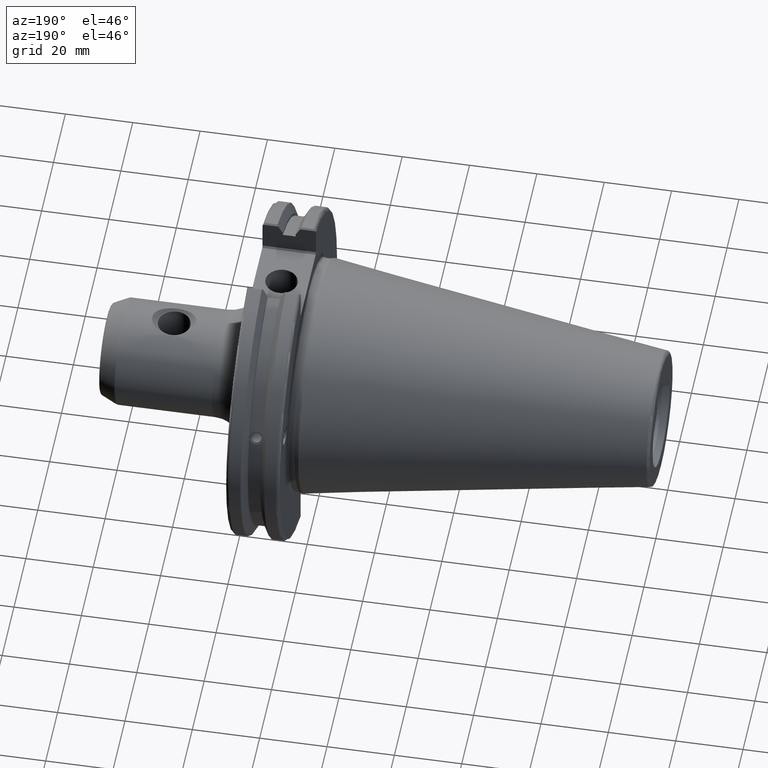
[diagram: clean part render]
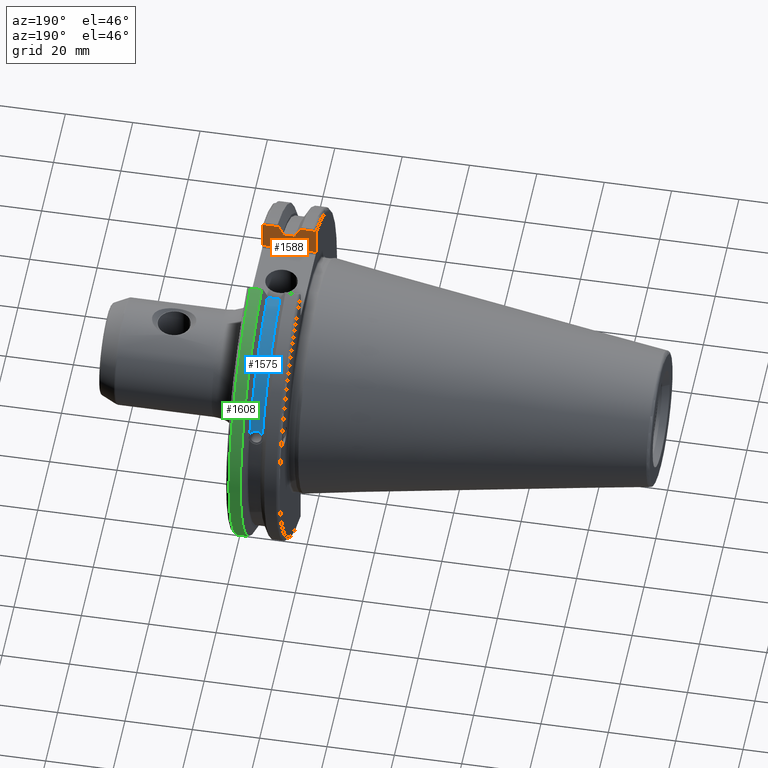
[diagram: same view with three faces highlighted in distinct colors, each labeled with its STEP entity id]
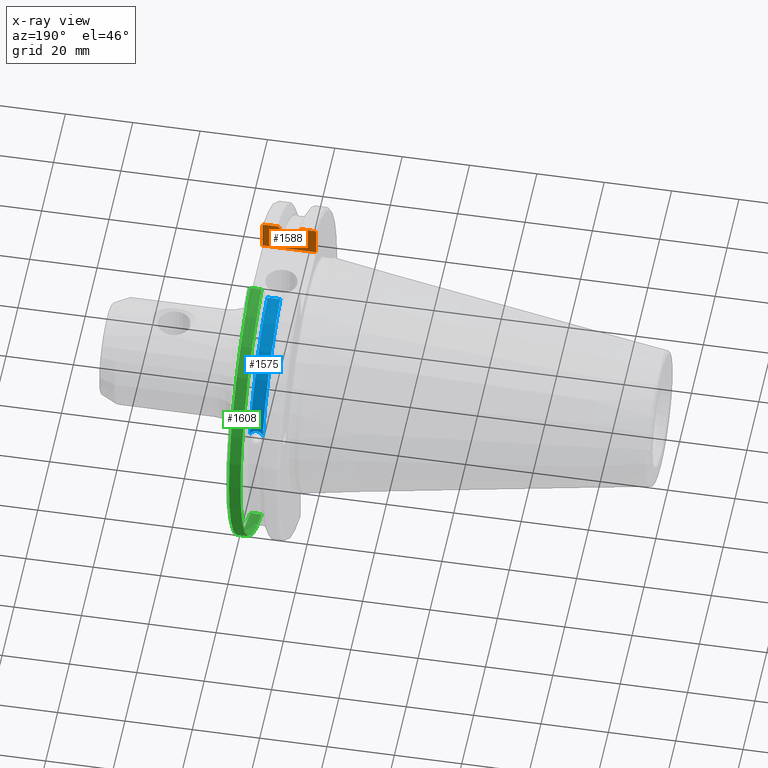
[diagram: x-ray of the same camera — body ghosted, the three highlighted faces saturated]
A machine part, auxiliary view with three faces highlighted in distinct colors.
The next image is the same camera in x-ray (body ghosted, the three faces saturated) — at least one of them is partly hidden behind the body in this view.
Their STEP definitions:

[orange] entity #1588 — the highlighted planar face has unit normal (-0, -1, 0).
#18=(
BOUNDED_CURVE()
B_SPLINE_CURVE(2,(#2825,#2826,#2827),.UNSPECIFIED.,.F.,.F.)
B_SPLINE_CURVE_WITH_KNOTS((3,3),(0.0558332664505639,0.331657177124505),
 .UNSPECIFIED.)
CURVE()
GEOMETRIC_REPRESENTATION_ITEM()
RATIONAL_B_SPLINE_CURVE((1.00012873636973,1.00038235575037,1.))
REPRESENTATION_ITEM('')
);
#24=(
BOUNDED_CURVE()
B_SPLINE_CURVE(2,(#3206,#3207,#3208),.UNSPECIFIED.,.F.,.F.)
B_SPLINE_CURVE_WITH_KNOTS((3,3),(0.,0.275823910674838),.UNSPECIFIED.)
CURVE()
GEOMETRIC_REPRESENTATION_ITEM()
RATIONAL_B_SPLINE_CURVE((1.,1.00038235573924,1.00012873636598))
REPRESENTATION_ITEM('')
);
#93=PLANE('',#1760);
#241=FACE_OUTER_BOUND('',#350,.T.);
#350=EDGE_LOOP('',(#1321,#1322,#1323,#1324,#1325,#1326,#1327,#1328,#1329,
#1330,#1331,#1332));
#429=B_SPLINE_CURVE_WITH_KNOTS('',3,(#3169,#3170,#3171,#3172,#3173,#3174),
 .UNSPECIFIED.,.F.,.F.,(4,2,4),(0.452859694247731,0.491383469061936,0.506034728678978),
 .UNSPECIFIED.);
#432=B_SPLINE_CURVE_WITH_KNOTS('',3,(#3197,#3198,#3199,#3200,#3201,#3202),
 .UNSPECIFIED.,.F.,.F.,(4,2,4),(0.0976892167532858,0.112000071948292,0.150881870548587),
 .UNSPECIFIED.);
#451=LINE('',#2512,#546);
#487=LINE('',#3079,#582);
#505=LINE('',#3195,#600);
#506=LINE('',#3204,#601);
#507=LINE('',#3210,#602);
#508=LINE('',#3212,#603);
#509=LINE('',#3213,#604);
#510=LINE('',#3214,#605);
#546=VECTOR('',#1907,10.);
#582=VECTOR('',#2071,10.);
#600=VECTOR('',#2109,10.);
#601=VECTOR('',#2110,10.);
#602=VECTOR('',#2111,10.);
#603=VECTOR('',#2112,10.);
#604=VECTOR('',#2113,10.);
#605=VECTOR('',#2114,10.);
#665=VERTEX_POINT('',#2509);
#666=VERTEX_POINT('',#2511);
#704=VERTEX_POINT('',#2820);
#705=VERTEX_POINT('',#2824);
#741=VERTEX_POINT('',#3075);
#743=VERTEX_POINT('',#3078);
#764=VERTEX_POINT('',#3168);
#767=VERTEX_POINT('',#3196);
#768=VERTEX_POINT('',#3203);
#769=VERTEX_POINT('',#3205);
#770=VERTEX_POINT('',#3209);
#771=VERTEX_POINT('',#3211);
#838=EDGE_CURVE('',#665,#666,#451,.T.);
#887=EDGE_CURVE('',#704,#705,#18,.T.);
#938=EDGE_CURVE('',#741,#743,#487,.T.);
#966=EDGE_CURVE('',#666,#764,#429,.T.);
#970=EDGE_CURVE('',#743,#665,#505,.T.);
#971=EDGE_CURVE('',#767,#741,#432,.T.);
#972=EDGE_CURVE('',#768,#767,#506,.T.);
#973=EDGE_CURVE('',#769,#768,#24,.T.);
#974=EDGE_CURVE('',#770,#769,#507,.T.);
#975=EDGE_CURVE('',#771,#770,#508,.T.);
#976=EDGE_CURVE('',#705,#771,#509,.T.);
#977=EDGE_CURVE('',#764,#704,#510,.T.);
#1321=ORIENTED_EDGE('',*,*,#966,.F.);
#1322=ORIENTED_EDGE('',*,*,#838,.F.);
#1323=ORIENTED_EDGE('',*,*,#970,.F.);
#1324=ORIENTED_EDGE('',*,*,#938,.F.);
#1325=ORIENTED_EDGE('',*,*,#971,.F.);
#1326=ORIENTED_EDGE('',*,*,#972,.F.);
#1327=ORIENTED_EDGE('',*,*,#973,.F.);
#1328=ORIENTED_EDGE('',*,*,#974,.F.);
#1329=ORIENTED_EDGE('',*,*,#975,.F.);
#1330=ORIENTED_EDGE('',*,*,#976,.F.);
#1331=ORIENTED_EDGE('',*,*,#887,.F.);
#1332=ORIENTED_EDGE('',*,*,#977,.F.);
#1588=ADVANCED_FACE('',(#241),#93,.F.);
#1760=AXIS2_PLACEMENT_3D('',#3194,#2107,#2108);
#1907=DIRECTION('',(0.,0.,1.));
#2071=DIRECTION('',(0.,0.,-1.));
#2107=DIRECTION('center_axis',(-1.31581988103722E-16,-1.,0.));
#2108=DIRECTION('ref_axis',(1.,-1.31581988103722E-16,0.));
#2109=DIRECTION('',(1.,-1.31581988103722E-16,0.));
#2110=DIRECTION('',(-1.,1.31581988103722E-16,0.));
#2111=DIRECTION('',(0.,0.,1.));
#2112=DIRECTION('',(-1.,0.,0.));
#2113=DIRECTION('',(0.,0.,-1.));
#2114=DIRECTION('',(-1.,1.31581988103722E-16,0.));
#2509=CARTESIAN_POINT('',(19.05,-12.95,38.219));
#2511=CARTESIAN_POINT('',(19.05,-12.95,46.4407434937254));
#2512=CARTESIAN_POINT('',(19.05,-12.95,18.8595));
#2820=CARTESIAN_POINT('',(14.3747103943757,-12.95,46.9780755322917));
#2824=CARTESIAN_POINT('',(13.042,-12.95,44.5791147973604));
#2825=CARTESIAN_POINT('Ctrl Pts',(14.3747103943757,-12.95,46.9780755322917));
#2826=CARTESIAN_POINT('Ctrl Pts',(13.6908955094594,-12.95,45.7494966802471));
#2827=CARTESIAN_POINT('Ctrl Pts',(13.042,-12.95,44.5791147973604));
#3075=CARTESIAN_POINT('',(3.175,-12.95,46.4407434937254));
#3078=CARTESIAN_POINT('',(3.175,-12.95,38.219));
#3079=CARTESIAN_POINT('',(3.175,-12.95,18.8595));
#3168=CARTESIAN_POINT('',(18.9055020570566,-12.95,46.9780755322918));
#3169=CARTESIAN_POINT('Ctrl Pts',(19.05,-12.95,46.4407434937254));
#3170=CARTESIAN_POINT('Ctrl Pts',(19.05,-12.95,46.5691560764394));
#3171=CARTESIAN_POINT('Ctrl Pts',(19.0209992543299,-12.95,46.7204975987179));
#3172=CARTESIAN_POINT('Ctrl Pts',(18.9549831813775,-12.95,46.8849952622217));
#3173=CARTESIAN_POINT('Ctrl Pts',(18.9322353702005,-12.95,46.9322596399785));
#3174=CARTESIAN_POINT('Ctrl Pts',(18.9055020570566,-12.95,46.9780755322918));
#3194=CARTESIAN_POINT('Origin',(3.175,-12.95,37.719));
#3195=CARTESIAN_POINT('',(10.63125,-12.95,38.219));
#3196=CARTESIAN_POINT('',(3.31949794294344,-12.95,46.9780755322918));
#3197=CARTESIAN_POINT('Ctrl Pts',(3.31949794294344,-12.95,46.9780755322918));
#3198=CARTESIAN_POINT('Ctrl Pts',(3.29341556483839,-12.95,46.9333752207329));
#3199=CARTESIAN_POINT('Ctrl Pts',(3.27115672912336,-12.95,46.887363294568));
#3200=CARTESIAN_POINT('Ctrl Pts',(3.20453530071253,-12.95,46.7230464903732));
#3201=CARTESIAN_POINT('Ctrl Pts',(3.175,-12.95,46.5703494890597));
#3202=CARTESIAN_POINT('Ctrl Pts',(3.175,-12.95,46.4407434937254));
#3203=CARTESIAN_POINT('',(7.87928960562423,-12.95,46.9780755322918));
#3204=CARTESIAN_POINT('',(5.38794548297563,-12.95,46.9780755322918));
#3205=CARTESIAN_POINT('',(9.21200000000001,-12.95,44.5791147973604));
#3206=CARTESIAN_POINT('Ctrl Pts',(9.21200000000001,-12.95,44.5791147973604));
#3207=CARTESIAN_POINT('Ctrl Pts',(8.56310449055921,-12.95,45.7494966802136));
#3208=CARTESIAN_POINT('Ctrl Pts',(7.87928960562423,-12.95,46.9780755322918));
#3209=CARTESIAN_POINT('',(9.21200000000001,-12.95,43.7678716897452));
#3210=CARTESIAN_POINT('',(9.212,-12.95,18.8595));
#3211=CARTESIAN_POINT('',(13.042,-12.95,43.7678716897452));
#3212=CARTESIAN_POINT('',(11.127,-12.95,43.7678716897452));
#3213=CARTESIAN_POINT('',(13.042,-12.95,18.8595));
#3214=CARTESIAN_POINT('',(16.8515545170244,-12.95,46.9780755322918));

[blue] entity #1575 — the highlighted cylindrical surface (partial cylindrical patch) has radius 45.6435 mm, axis along (1, 0, 0).
#157=CIRCLE('',#1731,45.6435);
#158=CIRCLE('',#1733,45.6435);
#228=FACE_OUTER_BOUND('',#331,.T.);
#331=EDGE_LOOP('',(#1243,#1244,#1245,#1246));
#421=B_SPLINE_CURVE_WITH_KNOTS('',3,(#2990,#2991,#2992,#2993,#2994,#2995,
#2996,#2997,#2998,#2999,#3000,#3001,#3002,#3003,#3004),.UNSPECIFIED.,.F.,
 .F.,(4,2,2,3,2,2,4),(-0.231381164054415,-0.158232381135623,-0.0791161905678115,
0.,0.0791161905678115,0.158232381135623,0.231381164054564),
 .UNSPECIFIED.);
#482=LINE('',#3045,#577);
#577=VECTOR('',#2032,10.);
#721=VERTEX_POINT('',#2987);
#722=VERTEX_POINT('',#2989);
#730=VERTEX_POINT('',#3039);
#731=VERTEX_POINT('',#3043);
#910=EDGE_CURVE('',#722,#721,#421,.T.);
#920=EDGE_CURVE('',#722,#730,#157,.T.);
#922=EDGE_CURVE('',#721,#731,#158,.T.);
#923=EDGE_CURVE('',#731,#730,#482,.T.);
#1243=ORIENTED_EDGE('',*,*,#910,.T.);
#1244=ORIENTED_EDGE('',*,*,#922,.T.);
#1245=ORIENTED_EDGE('',*,*,#923,.T.);
#1246=ORIENTED_EDGE('',*,*,#920,.F.);
#1527=CYLINDRICAL_SURFACE('',#1732,45.6435);
#1575=ADVANCED_FACE('',(#228),#1527,.T.);
#1731=AXIS2_PLACEMENT_3D('',#3040,#2025,#2026);
#1732=AXIS2_PLACEMENT_3D('',#3042,#2028,#2029);
#1733=AXIS2_PLACEMENT_3D('',#3044,#2030,#2031);
#2025=DIRECTION('center_axis',(1.,0.,0.));
#2026=DIRECTION('ref_axis',(0.,0.,-1.));
#2028=DIRECTION('center_axis',(1.,0.,0.));
#2029=DIRECTION('ref_axis',(0.,1.,0.));
#2030=DIRECTION('center_axis',(1.,0.,0.));
#2031=DIRECTION('ref_axis',(0.,0.,-1.));
#2032=DIRECTION('',(1.,0.,0.));
#2987=CARTESIAN_POINT('',(9.21200000000001,42.5884454651059,16.4180816515115));
#2989=CARTESIAN_POINT('',(13.042,42.5884454651059,16.4180816515116));
#2990=CARTESIAN_POINT('Ctrl Pts',(13.042,42.5884454651059,16.4180816515116));
#2991=CARTESIAN_POINT('Ctrl Pts',(12.9357782240206,42.5035323832641,16.6383458840849));
#2992=CARTESIAN_POINT('Ctrl Pts',(12.784291924423,42.4245077186417,16.8380515255915));
#2993=CARTESIAN_POINT('Ctrl Pts',(12.4254949659982,42.2908173017388,17.1712159412199));
#2994=CARTESIAN_POINT('Ctrl Pts',(12.1893796719457,42.2294695309474,17.3208689126276));
#2995=CARTESIAN_POINT('Ctrl Pts',(11.6719940832128,42.1475978938586,17.5191491957165));
#2996=CARTESIAN_POINT('Ctrl Pts',(11.390720635226,42.1271980081205,17.5678194501937));
#2997=CARTESIAN_POINT('Ctrl Pts',(11.127,42.1271980081205,17.5678194501937));
#2998=CARTESIAN_POINT('Ctrl Pts',(10.863279364774,42.1271980081205,17.5678194501937));
#2999=CARTESIAN_POINT('Ctrl Pts',(10.5820059167872,42.1475978938586,17.5191491957165));
#3000=CARTESIAN_POINT('Ctrl Pts',(10.0646203280543,42.2294695309474,17.3208689126276));
#3001=CARTESIAN_POINT('Ctrl Pts',(9.8285050340018,42.2908173017388,17.1712159412199));
#3002=CARTESIAN_POINT('Ctrl Pts',(9.46970807557666,42.4245077186418,16.8380515255912));
#3003=CARTESIAN_POINT('Ctrl Pts',(9.31822177598177,42.5035323832622,16.6383458840897));
#3004=CARTESIAN_POINT('Ctrl Pts',(9.212,42.5884454651059,16.4180816515115));
#3039=CARTESIAN_POINT('',(13.042,12.95,43.7678716897452));
#3040=CARTESIAN_POINT('Origin',(13.042,0.,0.));
#3042=CARTESIAN_POINT('Origin',(11.127,0.,0.));
#3043=CARTESIAN_POINT('',(9.21200000000001,12.95,43.7678716897452));
#3044=CARTESIAN_POINT('Origin',(9.21200000000001,0.,0.));
#3045=CARTESIAN_POINT('',(11.127,12.95,43.7678716897452));

[green] entity #1608 — the highlighted cylindrical surface (partial cylindrical patch) has radius 49.2125 mm, axis along (1, 0, 0).
#155=CIRCLE('',#1728,49.2125);
#170=CIRCLE('',#1755,49.2125);
#261=FACE_OUTER_BOUND('',#371,.T.);
#371=EDGE_LOOP('',(#1429,#1430,#1431,#1432));
#499=LINE('',#3139,#594);
#528=LINE('',#3338,#623);
#594=VECTOR('',#2095,10.);
#623=VECTOR('',#2192,10.);
#726=VERTEX_POINT('',#3023);
#727=VERTEX_POINT('',#3027);
#756=VERTEX_POINT('',#3118);
#757=VERTEX_POINT('',#3127);
#916=EDGE_CURVE('',#727,#726,#155,.T.);
#954=EDGE_CURVE('',#756,#757,#170,.T.);
#957=EDGE_CURVE('',#727,#756,#499,.T.);
#1016=EDGE_CURVE('',#757,#726,#528,.T.);
#1429=ORIENTED_EDGE('',*,*,#954,.F.);
#1430=ORIENTED_EDGE('',*,*,#957,.F.);
#1431=ORIENTED_EDGE('',*,*,#916,.T.);
#1432=ORIENTED_EDGE('',*,*,#1016,.F.);
#1534=CYLINDRICAL_SURFACE('',#1790,49.2125);
#1608=ADVANCED_FACE('',(#261),#1534,.T.);
#1728=AXIS2_PLACEMENT_3D('',#3028,#2019,#2020);
#1755=AXIS2_PLACEMENT_3D('',#3128,#2090,#2091);
#1790=AXIS2_PLACEMENT_3D('',#3337,#2190,#2191);
#2019=DIRECTION('center_axis',(1.,0.,0.));
#2020=DIRECTION('ref_axis',(0.,0.,-1.));
#2090=DIRECTION('center_axis',(1.,0.,0.));
#2091=DIRECTION('ref_axis',(0.,1.,-6.12323399573677E-17));
#2095=DIRECTION('',(1.,0.,0.));
#2190=DIRECTION('center_axis',(1.,0.,0.));
#2191=DIRECTION('ref_axis',(0.,1.,0.));
#2192=DIRECTION('',(-1.,0.,0.));
#3023=CARTESIAN_POINT('',(14.6531090340487,13.4317035994433,47.3440544806494));
#3027=CARTESIAN_POINT('',(14.6531090340487,13.4317035994433,-47.3440544806494));
#3028=CARTESIAN_POINT('Origin',(14.6531090340487,0.,0.));
#3118=CARTESIAN_POINT('',(18.05,13.4317035994433,-47.3440544806494));
#3127=CARTESIAN_POINT('',(18.05,13.4317035994433,47.3440544806494));
#3128=CARTESIAN_POINT('Origin',(18.05,0.,0.));
#3139=CARTESIAN_POINT('',(16.8515545170244,13.4317035994433,-47.3440544806494));
#3337=CARTESIAN_POINT('Origin',(16.8515545170244,0.,0.));
#3338=CARTESIAN_POINT('',(16.8515545170244,13.4317035994433,47.3440544806494));